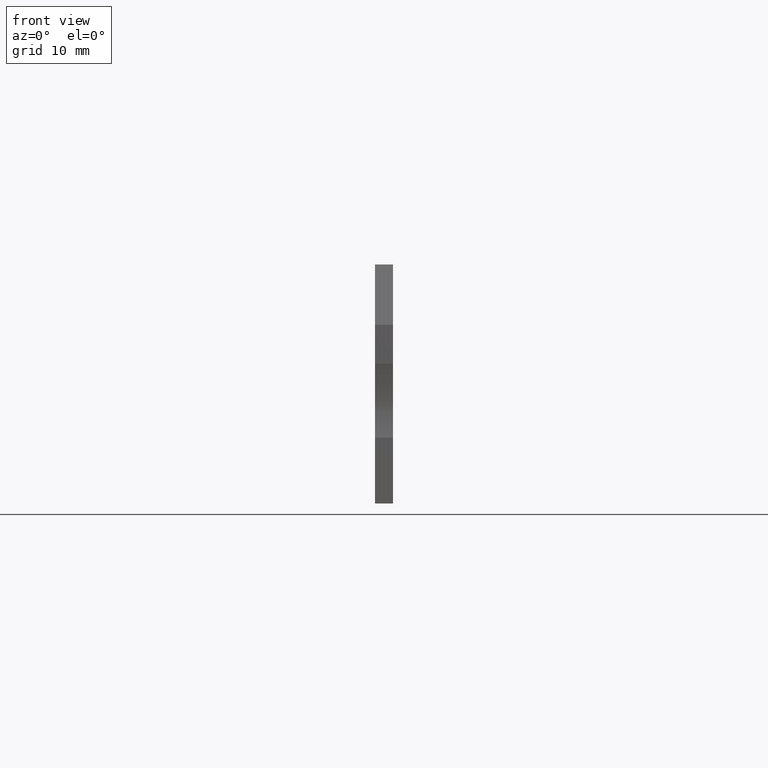
[diagram: clean part render]
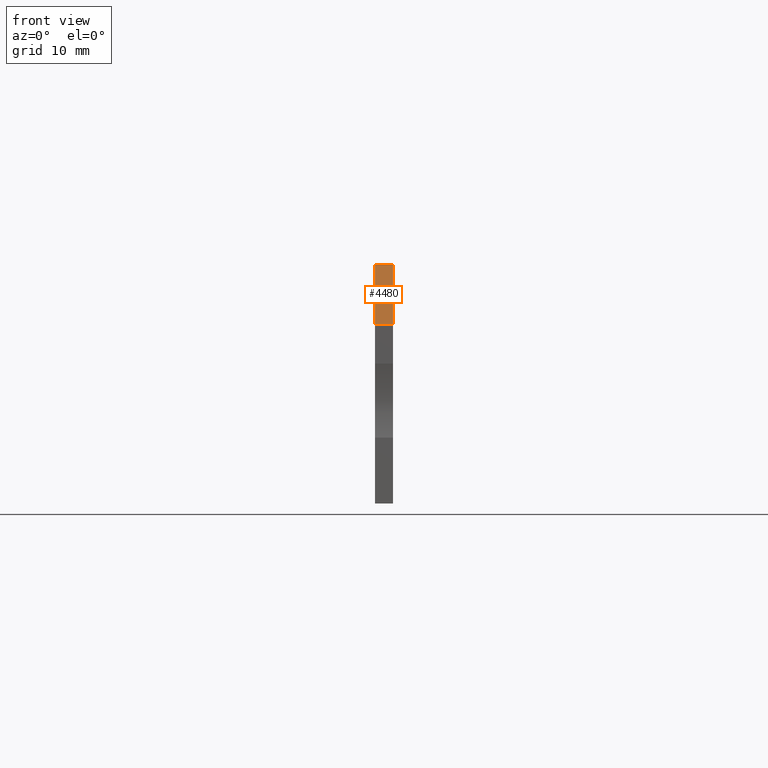
[diagram: same view with one face highlighted and labeled with its STEP entity id]
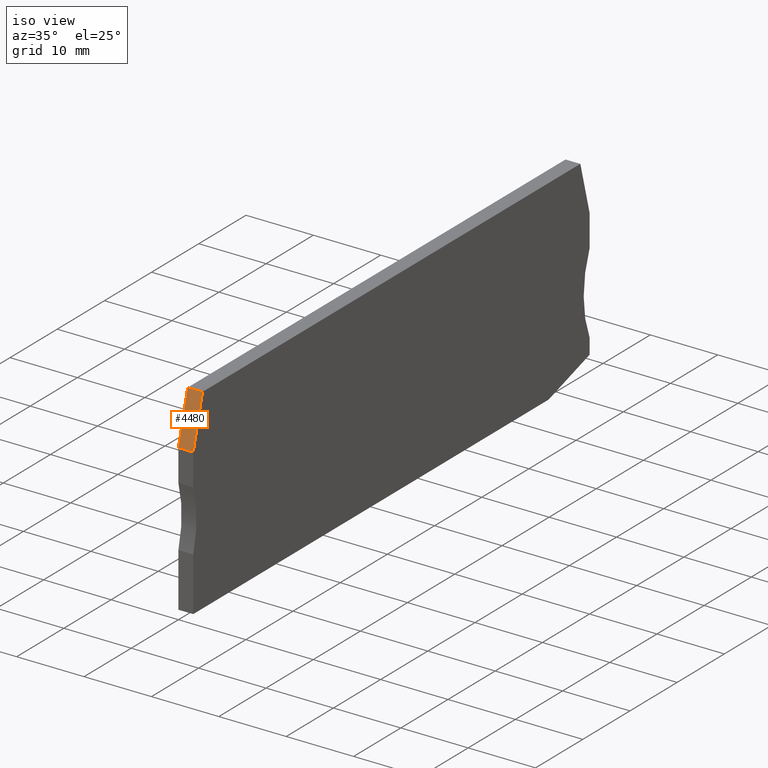
[diagram: same view with one face highlighted and labeled with its STEP entity id]
A machine part, front view. The second image highlights one B-rep face of the part: STEP entity #4480.
A second angle (iso view) of the same face is appended — the face is thin or edge-on in the first view.
In plain terms, the highlighted planar face has unit normal (-0, -0.9659, 0.2588).
Its self-contained STEP definition (entity closure, byte-faithful):
#100=CARTESIAN_POINT('',(-34.1678327783247,-16.4655444566093,53.17));
#110=VERTEX_POINT('',#100);
#160=CARTESIAN_POINT('',(-34.1678327783247,-16.4655444566093,53.17));
#170=DIRECTION('',(0.,0.,1.));
#180=VECTOR('',#170,1.);
#190=LINE('',#160,#180);
#200=CARTESIAN_POINT('',(-34.1678327783247,-16.4655444566093,55.37));
#210=VERTEX_POINT('',#200);
#220=EDGE_CURVE('',#110,#210,#190,.T.);
#1870=CARTESIAN_POINT('',(-33.0061407460509,-12.1300507694265,55.37));
#1880=DIRECTION('',(-0.258819045103118,-0.965925826288908,0.));
#1890=VECTOR('',#1880,1.);
#1900=LINE('',#1870,#1890);
#1910=CARTESIAN_POINT('',(-32.2076385489778,-9.15000000000162,55.37));
#1920=VERTEX_POINT('',#1910);
#1930=EDGE_CURVE('',#1920,#210,#1900,.T.);
#2620=CARTESIAN_POINT('',(-32.2076385489778,-9.15000000000162,53.17));
#2630=VERTEX_POINT('',#2620);
#2660=CARTESIAN_POINT('',(-33.0061407460509,-12.1300507694265,53.17));
#2670=DIRECTION('',(-0.258819045103118,-0.965925826288908,0.));
#2680=VECTOR('',#2670,1.);
#2690=LINE('',#2660,#2680);
#2700=EDGE_CURVE('',#2630,#110,#2690,.T.);
#4320=CARTESIAN_POINT('',(-34.1798353230829,-16.510338563467,53.17));
#4330=DIRECTION('',(-0.965925826288908,0.258819045103118,0.));
#4340=DIRECTION('',(0.258819045103118,0.965925826288908,0.));
#4350=AXIS2_PLACEMENT_3D('',#4320,#4330,#4340);
#4360=PLANE('',#4350);
#4370=ORIENTED_EDGE('',*,*,#2700,.T.);
#4380=CARTESIAN_POINT('',(-32.2076385489778,-9.15000000000162,53.17));
#4390=DIRECTION('',(0.,0.,1.));
#4400=VECTOR('',#4390,1.);
#4410=LINE('',#4380,#4400);
#4420=EDGE_CURVE('',#2630,#1920,#4410,.T.);
#4430=ORIENTED_EDGE('',*,*,#4420,.F.);
#4440=ORIENTED_EDGE('',*,*,#1930,.F.);
#4450=ORIENTED_EDGE('',*,*,#220,.T.);
#4460=EDGE_LOOP('',(#4450,#4440,#4430,#4370));
#4470=FACE_OUTER_BOUND('',#4460,.T.);
#4480=ADVANCED_FACE('',(#4470),#4360,.T.);